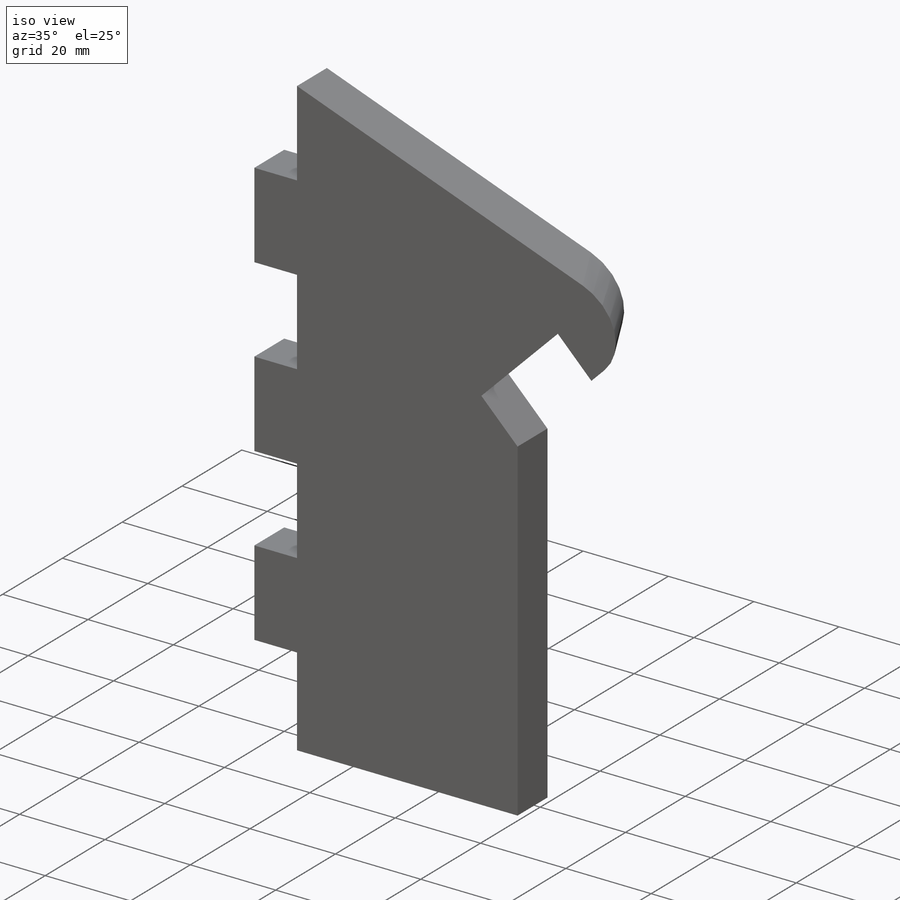
[diagram: iso view]
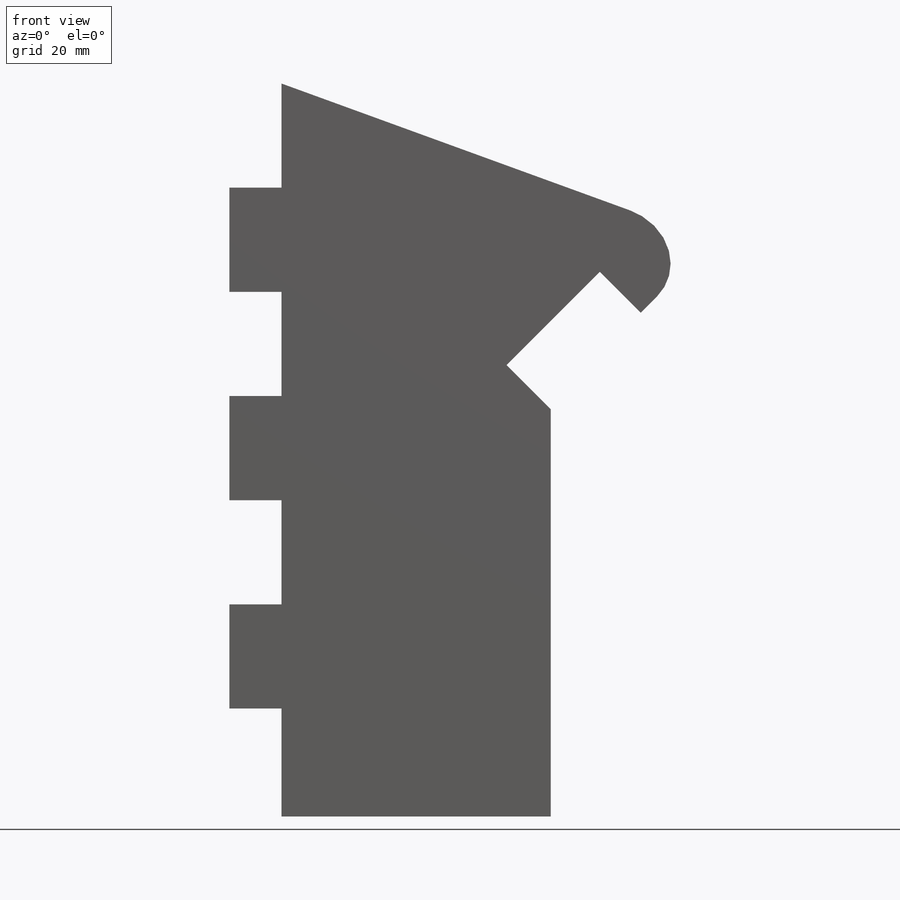
[diagram: front view]
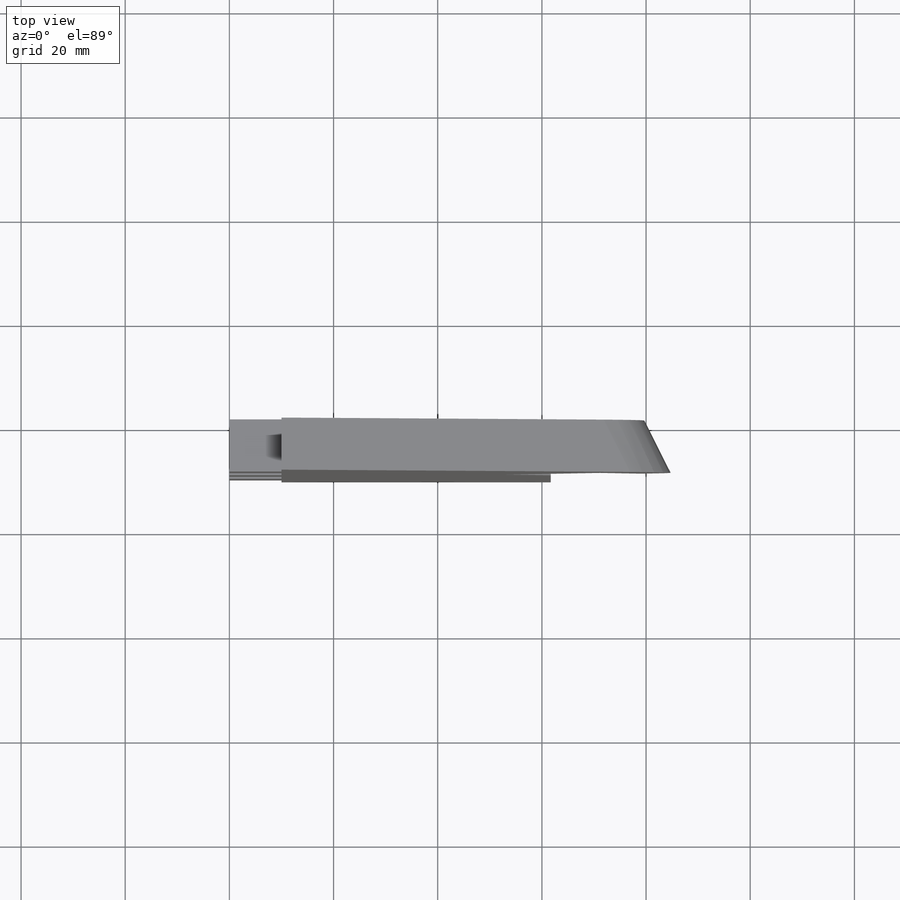
[diagram: top view]
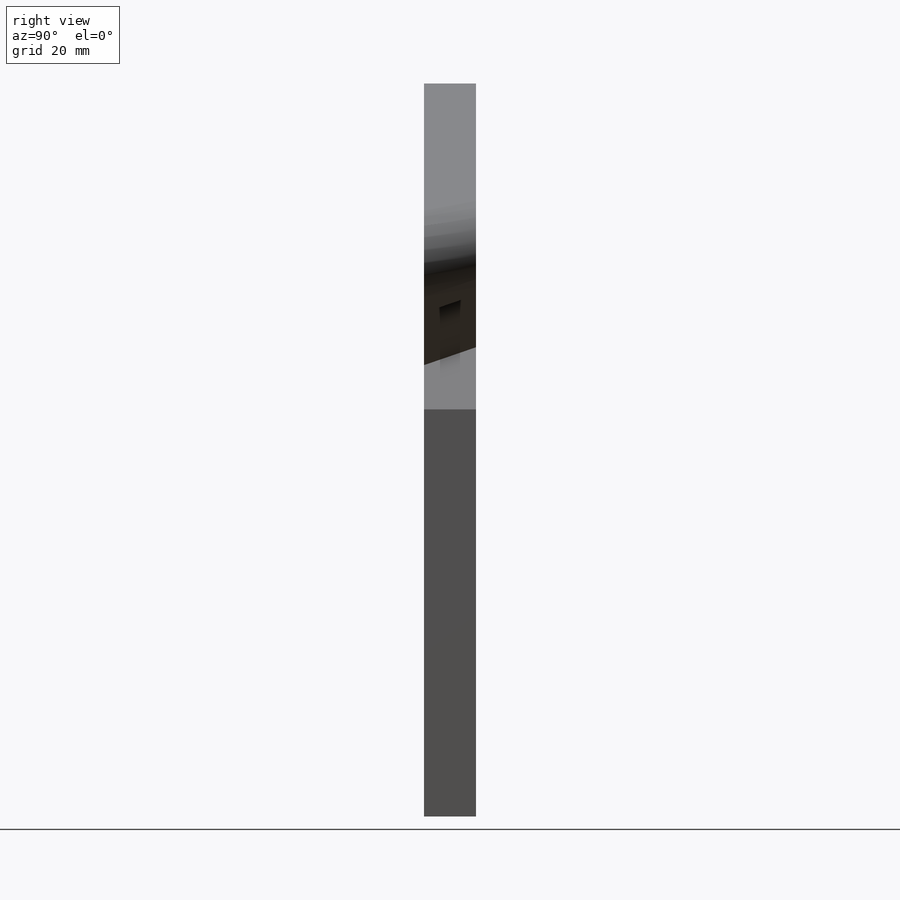
[diagram: right view]
SOLIDWORKS PART (.sldprt)
format: sldprt  version: not decoded by parser v0  size: 279,552 bytes
history: native  units: mm
features: sketch x7, cut_extrude x5, material x1, extrude x1, fillet x1 (+11 scaffold rows collapsed)
feature tree (26):
  scaffold x11  (default folders/planes/origin — collapsed)
  material  "Material <not specified>"
  sketch  "Sketch1"
  extrude  "Boss-Extrude1"  Depth=10mm
  sketch  "Sketch2"  dims[c1.D1=10.0mm c1.D2=20.0mm c1.D3=20.0mm c1.D4=20.0mm c1.D5=20.0mm c1.D6=20.0mm c2.D2=20.0mm c2.D7=20.0mm]
  cut_extrude  "Cut-Extrude1"  Depth=10mm
  sketch  "Sketch4"  dims[c1.D1=20.0mm c2.D1=50.0deg c3.D1=20.0mm c4.D1=70.0deg]
  cut_extrude  "Cut-Extrude2"  Depth=10mm
  sketch  "Sketch5"  dims[c1.D1=~54.990861mm c2.D1=~11.523501deg c3.D1=20.0mm c3.D2=20.0mm]
  sketch  "Sketch7"  dims[c1.D1=~19.432559mm c2.D1=~5.095515deg c3.D1=12.0mm c3.D2=12.0mm c4.D1=12.0mm c4.D2=12.0mm]
  cut_extrude  "Cut-Extrude6"  Depth=150mm
  sketch  "Sketch9"  dims[D1=20.0mm]
  cut_extrude  "Cut-Extrude7"  [1 undecoded]
  sketch  "Sketch10"
  cut_extrude  "Cut-Extrude8"  Depth=150mm
  fillet  "Fillet1"  Radius=10mm
decode coverage: 11 of 14 modeling features carry decoded parameters
note: ~ marks probable driven/reference dimensions
note: 1 parameter value undecoded
note: suppression state not decoded; provenance and decode notes live in map.json
